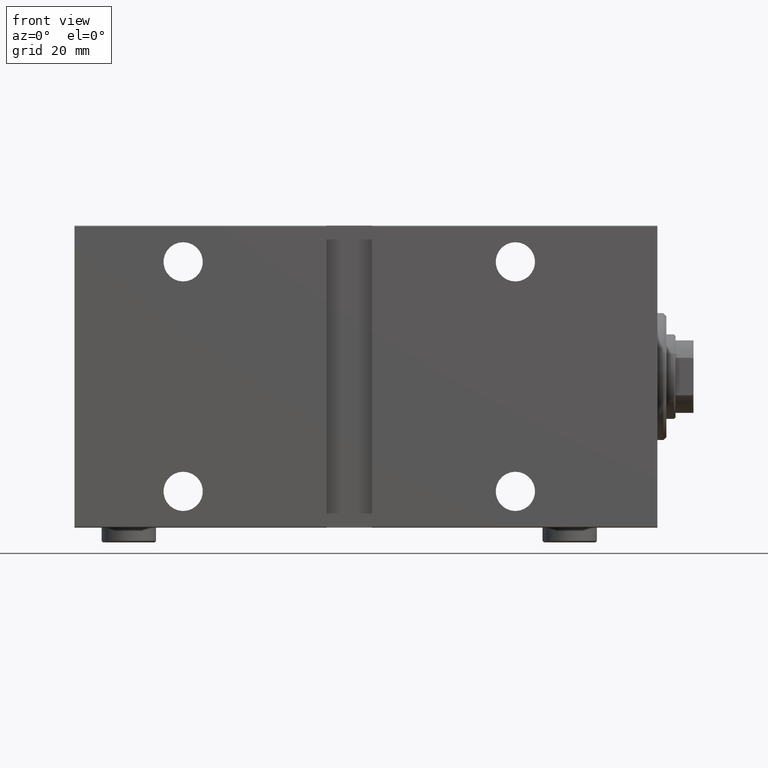
[diagram: clean part render]
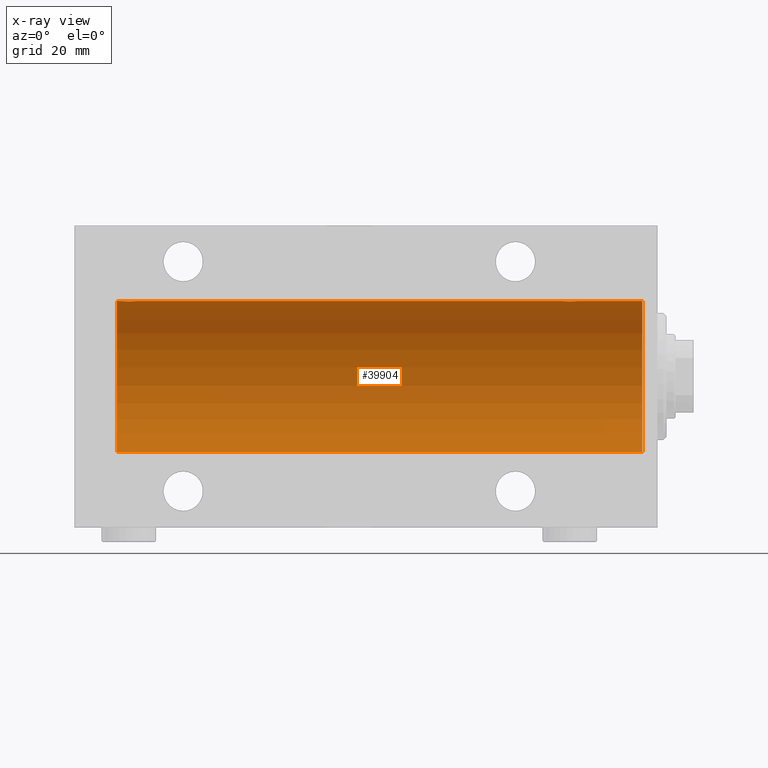
[diagram: x-ray — body ghosted, one internal face saturated and labeled with its STEP entity id]
A machine part, front view, then the same camera in x-ray: the body is ghosted and one INTERNAL B-rep face — a face not visible from any outside direction — is saturated and labeled: STEP entity #39904.
In plain terms, the highlighted cylindrical surface (partial cylindrical patch) has radius 25 mm, axis along (1, 0, -0).
Its self-contained STEP definition (entity closure, byte-faithful):
#171 = CIRCLE ( 'NONE', #5905, 25.00000000000000000 ) ;
#743 = VERTEX_POINT ( 'NONE', #18191 ) ;
#967 = VERTEX_POINT ( 'NONE', #2400 ) ;
#1156 = EDGE_CURVE ( 'NONE', #13280, #20488, #28552, .T. ) ;
#1301 = CARTESIAN_POINT ( 'NONE',  ( 174.6705231988573530, -2.483544361357268304, 24.87635491893501793 ) ) ;
#1949 = CARTESIAN_POINT ( 'NONE',  ( 27.11587617213528745, -1.651251241585106166, 24.94567559498348430 ) ) ;
#2057 = DIRECTION ( 'NONE',  ( -1.000000000000000000, 0.000000000000000000, 0.000000000000000000 ) ) ;
#2400 = CARTESIAN_POINT ( 'NONE',  ( 177.5000000000000568, 1.404322005998729010E-15, 25.00000000000000000 ) ) ;
#2612 = CARTESIAN_POINT ( 'NONE',  ( 29.64560666148631896, -2.420689345803760606, 24.88254961038873958 ) ) ;
#3741 = CARTESIAN_POINT ( 'NONE',  ( 179.0000000000000000, 0.000000000000000000, 25.00000000000000000 ) ) ;
#4668 = CARTESIAN_POINT ( 'NONE',  ( 172.8298870971908343, -1.252049606094326695, 24.96900299967627390 ) ) ;
#5100 = CARTESIAN_POINT ( 'NONE',  ( 26.82988709719076681, -1.252049606094339351, 24.96900299967627390 ) ) ;
#5483 = CARTESIAN_POINT ( 'NONE',  ( 173.3461666385066451, -1.881857718844717642, 24.92933960374833546 ) ) ;
#5544 = CARTESIAN_POINT ( 'NONE',  ( 30.25084023924054932, -2.170728182476720836, 24.90574631553725027 ) ) ;
#5766 = CARTESIAN_POINT ( 'NONE',  ( 27.34616663850663443, -1.881857718844720528, 24.92933960374834967 ) ) ;
#5905 = AXIS2_PLACEMENT_3D ( 'NONE', #26042, #2057, #11713 ) ;
#6147 = CARTESIAN_POINT ( 'NONE',  ( 177.5000000000000568, 1.404322005998729010E-15, 25.00000000000000000 ) ) ;
#6986 = VERTEX_POINT ( 'NONE', #25777 ) ;
#8039 = CARTESIAN_POINT ( 'NONE',  ( 175.3259657003945904, -2.484007091859763872, 24.87630842367762796 ) ) ;
#8392 = VECTOR ( 'NONE', #11887, 1000.000000000000000 ) ;
#8642 = EDGE_CURVE ( 'NONE', #20488, #9481, #36413, .T. ) ;
#8758 = ORIENTED_EDGE ( 'NONE', *, *, #42401, .F. ) ;
#8848 = CARTESIAN_POINT ( 'NONE',  ( 174.1921165759419523, -2.371528299825747421, 24.88734287464370709 ) ) ;
#8903 = CARTESIAN_POINT ( 'NONE',  ( 31.24606379094067776, -1.109818057797414381, 24.97580694515543343 ) ) ;
#9070 = CARTESIAN_POINT ( 'NONE',  ( 177.2460637909407524, -1.109818057797409718, 24.97580694515542632 ) ) ;
#9367 = ORIENTED_EDGE ( 'NONE', *, *, #19604, .T. ) ;
#9481 = VERTEX_POINT ( 'NONE', #21143 ) ;
#9525 = CARTESIAN_POINT ( 'NONE',  ( 176.6512113355912277, -1.884161199660621344, 24.92916496727982789 ) ) ;
#9658 = DIRECTION ( 'NONE',  ( 0.000000000000000000, 0.000000000000000000, 1.000000000000000000 ) ) ;
#9879 = FACE_OUTER_BOUND ( 'NONE', #22859, .T. ) ;
#9961 = AXIS2_PLACEMENT_3D ( 'NONE', #38093, #37245, #9658 ) ;
#11392 = CARTESIAN_POINT ( 'NONE',  ( 172.5000000000000284, -1.941505016884693205E-23, 25.00000000000000000 ) ) ;
#11613 = CARTESIAN_POINT ( 'NONE',  ( 174.8329350482194116, -2.499872792855079240, 24.87469871246083031 ) ) ;
#11713 = DIRECTION ( 'NONE',  ( 0.000000000000000000, 0.000000000000000000, 1.000000000000000000 ) ) ;
#11823 = CARTESIAN_POINT ( 'NONE',  ( 31.43349355239748277, -0.6588655613945849643, 24.99312727339970053 ) ) ;
#11887 = DIRECTION ( 'NONE',  ( -1.000000000000000000, -0.000000000000000000, -0.000000000000000000 ) ) ;
#12045 = CARTESIAN_POINT ( 'NONE',  ( 30.65121133559112820, -1.884161199660616459, 24.92916496727982434 ) ) ;
#12264 = CARTESIAN_POINT ( 'NONE',  ( 28.83293504821940445, -2.499872792855083681, 24.87469871246083031 ) ) ;
#12429 = CARTESIAN_POINT ( 'NONE',  ( 173.0125018416560465, -1.525407911884356205, 24.95379469572361586 ) ) ;
#12486 = CARTESIAN_POINT ( 'NONE',  ( 31.50000000000000000, -0.3305063766663733360, 25.00000000000000000 ) ) ;
#13280 = VERTEX_POINT ( 'NONE', #24383 ) ;
#14545 = CARTESIAN_POINT ( 'NONE',  ( 26.51582159942343253, -0.3254210271412225075, 24.99840249400844527 ) ) ;
#14720 = DIRECTION ( 'NONE',  ( -1.000000000000000000, -0.000000000000000000, -0.000000000000000000 ) ) ;
#14759 = CARTESIAN_POINT ( 'NONE',  ( 26.57985090779071058, -0.6480119923854229524, 24.99212088949391131 ) ) ;
#15624 = AXIS2_PLACEMENT_3D ( 'NONE', #43636, #40710, #33972 ) ;
#15625 = LINE ( 'NONE', #19855, #32120 ) ;
#15639 = CARTESIAN_POINT ( 'NONE',  ( 27.88963203491136511, -2.245863995402902269, 24.89899750494197761 ) ) ;
#16077 = CARTESIAN_POINT ( 'NONE',  ( 26.75239748980448340, -1.106703319666886731, 24.97594585958023572 ) ) ;
#16429 = B_SPLINE_CURVE_WITH_KNOTS ( 'NONE', 3,
 ( #31809, #21035, #14545, #14759, #41916, #16077, #5100, #29310, #1949, #5766, #43008, #18986, #15639, #32909, #25938, #36049, #12264, #42787, #19434, #2612, #32678, #25499, #5544, #26153, #12045, #39635, #18773, #25723, #8903, #11823, #12486, #22794 ),
 .UNSPECIFIED., .F., .F.,
 ( 4, 2, 2, 2, 2, 2, 2, 2, 2, 2, 2, 2, 2, 2, 2, 4 ),
 ( 0.007821024441662294616, 0.008309723826317901019, 0.008798423210973509156, 0.009287122595629115560, 0.009775821980284721963, 0.01026452136494032837, 0.01075322074959593477, 0.01124192013425154291, 0.01173061951890714757, 0.01221931890356275571, 0.01270801828821836212, 0.01319671767287396852, 0.01368541705752957666, 0.01417411644218518479, 0.01466281582684079120, 0.01564021459615200574 ),
 .UNSPECIFIED. ) ;
#16697 = EDGE_CURVE ( 'NONE', #13280, #29434, #171, .T. ) ;
#17356 = EDGE_CURVE ( 'NONE', #27170, #967, #38617, .T. ) ;
#18191 = CARTESIAN_POINT ( 'NONE',  ( 31.50000000000000000, -4.224067783497237755E-16, 25.00000000000000000 ) ) ;
#18773 = CARTESIAN_POINT ( 'NONE',  ( 30.98538033717095530, -1.528152964861310359, 24.95362559291379156 ) ) ;
#18986 = CARTESIAN_POINT ( 'NONE',  ( 27.74616804575498463, -2.169003991399872433, 24.90589728951139392 ) ) ;
#19434 = CARTESIAN_POINT ( 'NONE',  ( 29.32596570039460104, -2.484007091859765204, 24.87630842367763506 ) ) ;
#19596 = CARTESIAN_POINT ( 'NONE',  ( 173.7461680457549846, -2.169003991399866216, 24.90589728951138682 ) ) ;
#19604 = EDGE_CURVE ( 'NONE', #6986, #743, #16429, .T. ) ;
#19815 = CARTESIAN_POINT ( 'NONE',  ( 172.7523974898044798, -1.106703319666880958, 24.97594585958023217 ) ) ;
#19855 = CARTESIAN_POINT ( 'NONE',  ( 179.0000000000000000, 0.000000000000000000, 25.00000000000000000 ) ) ;
#20488 = VERTEX_POINT ( 'NONE', #30472 ) ;
#20506 = VECTOR ( 'NONE', #14720, 1000.000000000000000 ) ;
#20717 = ORIENTED_EDGE ( 'NONE', *, *, #1156, .T. ) ;
#21035 = CARTESIAN_POINT ( 'NONE',  ( 26.50000000000000355, -0.1631750940176212028, 25.00000000000000355 ) ) ;
#21143 = CARTESIAN_POINT ( 'NONE',  ( 5.000000000000004441, 0.000000000000000000, 25.00000000000000000 ) ) ;
#21322 = CARTESIAN_POINT ( 'NONE',  ( 179.0000000000000000, 0.000000000000000000, 25.00000000000000000 ) ) ;
#21695 = CARTESIAN_POINT ( 'NONE',  ( 176.2508402392405458, -2.170728182476725276, 24.90574631553724672 ) ) ;
#22480 = CARTESIAN_POINT ( 'NONE',  ( 179.0000000000000000, 0.000000000000000000, 25.00000000000000000 ) ) ;
#22507 = CARTESIAN_POINT ( 'NONE',  ( 175.8043566091631078, -2.372734907014173000, 24.88722742718433878 ) ) ;
#22639 = ORIENTED_EDGE ( 'NONE', *, *, #32249, .F. ) ;
#22651 = VECTOR ( 'NONE', #35742, 1000.000000000000000 ) ;
#22794 = CARTESIAN_POINT ( 'NONE',  ( 31.50000000000000000, -4.224067783497237755E-16, 25.00000000000000000 ) ) ;
#22859 = EDGE_LOOP ( 'NONE', ( #34616, #20717, #33898, #43937, #9367, #8758, #34579, #22639 ) ) ;
#23180 = CARTESIAN_POINT ( 'NONE',  ( 176.9853803371709944, -1.528152964861297258, 24.95362559291378446 ) ) ;
#24383 = CARTESIAN_POINT ( 'NONE',  ( 179.0000000000000000, 3.061616997868382254E-15, -25.00000000000000000 ) ) ;
#24386 = CYLINDRICAL_SURFACE ( 'NONE', #9961, 25.00000000000000000 ) ;
#25072 = CARTESIAN_POINT ( 'NONE',  ( 172.5158215994234752, -0.3254210271412208977, 24.99840249400844527 ) ) ;
#25499 = CARTESIAN_POINT ( 'NONE',  ( 30.10723845838410639, -2.247417070759895719, 24.89885693081946272 ) ) ;
#25723 = CARTESIAN_POINT ( 'NONE',  ( 31.16827641493957302, -1.255214705003178777, 24.96884293994577675 ) ) ;
#25777 = CARTESIAN_POINT ( 'NONE',  ( 26.50000000000000355, -1.940558383798427991E-23, 25.00000000000000000 ) ) ;
#25881 = CARTESIAN_POINT ( 'NONE',  ( 172.5798509077907568, -0.6480119923854213981, 24.99212088949391131 ) ) ;
#25938 = CARTESIAN_POINT ( 'NONE',  ( 28.35095609830903740, -2.419770561643910689, 24.88263927071751169 ) ) ;
#26042 = CARTESIAN_POINT ( 'NONE',  ( 179.0000000000000000, 0.000000000000000000, 0.000000000000000000 ) ) ;
#26099 = CARTESIAN_POINT ( 'NONE',  ( 176.5225677434019076, -1.989585286700252809, 24.92087098724766747 ) ) ;
#26153 = CARTESIAN_POINT ( 'NONE',  ( 30.52256774340189338, -1.989585286700246813, 24.92087098724766037 ) ) ;
#26555 = CARTESIAN_POINT ( 'NONE',  ( 173.8896320349113864, -2.245863995402900049, 24.89899750494197050 ) ) ;
#26813 = DIRECTION ( 'NONE',  ( -1.000000000000000000, -0.000000000000000000, -0.000000000000000000 ) ) ;
#27170 = VERTEX_POINT ( 'NONE', #40419 ) ;
#27960 = LINE ( 'NONE', #3741, #20506 ) ;
#28552 = LINE ( 'NONE', #35958, #22651 ) ;
#29310 = CARTESIAN_POINT ( 'NONE',  ( 27.01250184165601809, -1.525407911884366863, 24.95379469572362297 ) ) ;
#29434 = VERTEX_POINT ( 'NONE', #22480 ) ;
#29705 = CARTESIAN_POINT ( 'NONE',  ( 175.6456066614863403, -2.420689345803761938, 24.88254961038872892 ) ) ;
#30472 = CARTESIAN_POINT ( 'NONE',  ( 5.000000000000004441, 3.061616997868382254E-15, -25.00000000000000000 ) ) ;
#31809 = CARTESIAN_POINT ( 'NONE',  ( 26.50000000000000355, -1.940558383798427991E-23, 25.00000000000000000 ) ) ;
#32120 = VECTOR ( 'NONE', #26813, 1000.000000000000000 ) ;
#32249 = EDGE_CURVE ( 'NONE', #29434, #967, #27960, .T. ) ;
#32678 = CARTESIAN_POINT ( 'NONE',  ( 29.80435660916302609, -2.372734907014173888, 24.88722742718433878 ) ) ;
#32854 = CARTESIAN_POINT ( 'NONE',  ( 172.6278403059140203, -0.8058335233485443005, 24.98746277938383287 ) ) ;
#32909 = CARTESIAN_POINT ( 'NONE',  ( 28.19211657594193809, -2.371528299825748753, 24.88734287464370709 ) ) ;
#33898 = ORIENTED_EDGE ( 'NONE', *, *, #8642, .T. ) ;
#33972 = DIRECTION ( 'NONE',  ( 0.000000000000000000, 0.000000000000000000, 1.000000000000000000 ) ) ;
#34579 = ORIENTED_EDGE ( 'NONE', *, *, #17356, .T. ) ;
#34616 = ORIENTED_EDGE ( 'NONE', *, *, #16697, .F. ) ;
#35301 = EDGE_CURVE ( 'NONE', #6986, #9481, #42633, .T. ) ;
#35403 = CARTESIAN_POINT ( 'NONE',  ( 177.1682764149396121, -1.255214705003166564, 24.96884293994578385 ) ) ;
#35742 = DIRECTION ( 'NONE',  ( -1.000000000000000000, -0.000000000000000000, -0.000000000000000000 ) ) ;
#35958 = CARTESIAN_POINT ( 'NONE',  ( 179.0000000000000000, 3.061616997868382254E-15, -25.00000000000000000 ) ) ;
#36049 = CARTESIAN_POINT ( 'NONE',  ( 28.67052319885731393, -2.483544361357271413, 24.87635491893501793 ) ) ;
#36211 = CARTESIAN_POINT ( 'NONE',  ( 176.8818595414865058, -1.653834020452942477, 24.94550385189585029 ) ) ;
#36413 = CIRCLE ( 'NONE', #15624, 25.00000000000000000 ) ;
#36443 = CARTESIAN_POINT ( 'NONE',  ( 175.1632358963854585, -2.500125740978193178, 24.87467329022544504 ) ) ;
#36878 = CARTESIAN_POINT ( 'NONE',  ( 177.4334935523975787, -0.6588655613945811895, 24.99312727339969697 ) ) ;
#37245 = DIRECTION ( 'NONE',  ( -1.000000000000000000, -0.000000000000000000, -0.000000000000000000 ) ) ;
#38093 = CARTESIAN_POINT ( 'NONE',  ( 179.0000000000000000, 0.000000000000000000, 0.000000000000000000 ) ) ;
#38617 = B_SPLINE_CURVE_WITH_KNOTS ( 'NONE', 3,
 ( #11392, #39798, #25072, #25881, #32854, #19815, #4668, #12429, #38766, #5483, #42359, #19596, #26555, #8848, #40262, #1301, #11613, #36443, #8039, #29705, #22507, #39579, #21695, #26099, #9525, #36211, #23180, #35403, #9070, #36878, #43167, #6147 ),
 .UNSPECIFIED., .F., .F.,
 ( 4, 2, 2, 2, 2, 2, 2, 2, 2, 2, 2, 2, 2, 2, 2, 4 ),
 ( 0.007821024441662296350, 0.008309723826317906223, 0.008798423210973516095, 0.009287122595629124233, 0.009775821980284732371, 0.01026452136494034224, 0.01075322074959595212, 0.01124192013425156025, 0.01173061951890716839, 0.01221931890356277826, 0.01270801828821838814, 0.01319671767287399627, 0.01368541705752960788, 0.01417411644218521602, 0.01466281582684082589, 0.01564021459615201268 ),
 .UNSPECIFIED. ) ;
#38766 = CARTESIAN_POINT ( 'NONE',  ( 173.1158761721353585, -1.651251241585103724, 24.94567559498349141 ) ) ;
#39579 = CARTESIAN_POINT ( 'NONE',  ( 176.1072384583841028, -2.247417070759893942, 24.89885693081946627 ) ) ;
#39635 = CARTESIAN_POINT ( 'NONE',  ( 30.88185954148647028, -1.653834020452937592, 24.94550385189585029 ) ) ;
#39798 = CARTESIAN_POINT ( 'NONE',  ( 172.5000000000000853, -0.1631750940176186493, 25.00000000000001066 ) ) ;
#39904 = ADVANCED_FACE ( 'NONE', ( #9879 ), #24386, .F. ) ;
#40262 = CARTESIAN_POINT ( 'NONE',  ( 174.3509560983091262, -2.419770561643906248, 24.88263927071751169 ) ) ;
#40419 = CARTESIAN_POINT ( 'NONE',  ( 172.5000000000000284, -1.941505016884693205E-23, 25.00000000000000000 ) ) ;
#40710 = DIRECTION ( 'NONE',  ( -1.000000000000000000, 0.000000000000000000, 0.000000000000000000 ) ) ;
#41916 = CARTESIAN_POINT ( 'NONE',  ( 26.62784030591392792, -0.8058335233485491855, 24.98746277938382576 ) ) ;
#42359 = CARTESIAN_POINT ( 'NONE',  ( 173.4746381775692612, -1.987446652080256948, 24.92104239223420592 ) ) ;
#42401 = EDGE_CURVE ( 'NONE', #27170, #743, #15625, .T. ) ;
#42633 = LINE ( 'NONE', #21322, #8392 ) ;
#42787 = CARTESIAN_POINT ( 'NONE',  ( 29.16323589638543723, -2.500125740978196731, 24.87467329022545570 ) ) ;
#43008 = CARTESIAN_POINT ( 'NONE',  ( 27.47463817756919724, -1.987446652080264275, 24.92104239223420592 ) ) ;
#43167 = CARTESIAN_POINT ( 'NONE',  ( 177.5000000000000568, -0.3305063766663748903, 24.99999999999999289 ) ) ;
#43636 = CARTESIAN_POINT ( 'NONE',  ( 5.000000000000004441, 0.000000000000000000, 0.000000000000000000 ) ) ;
#43937 = ORIENTED_EDGE ( 'NONE', *, *, #35301, .F. ) ;